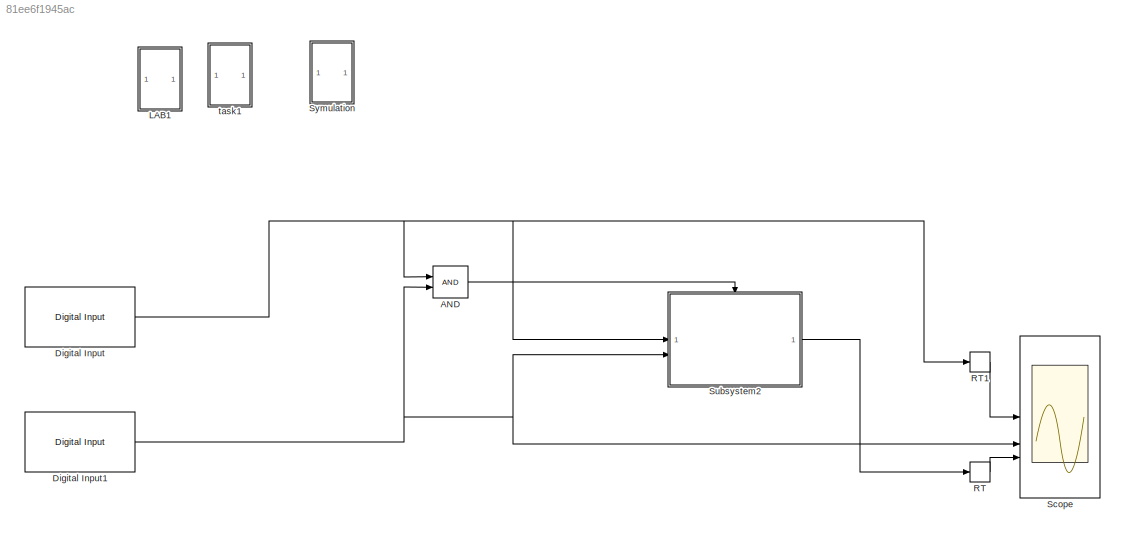
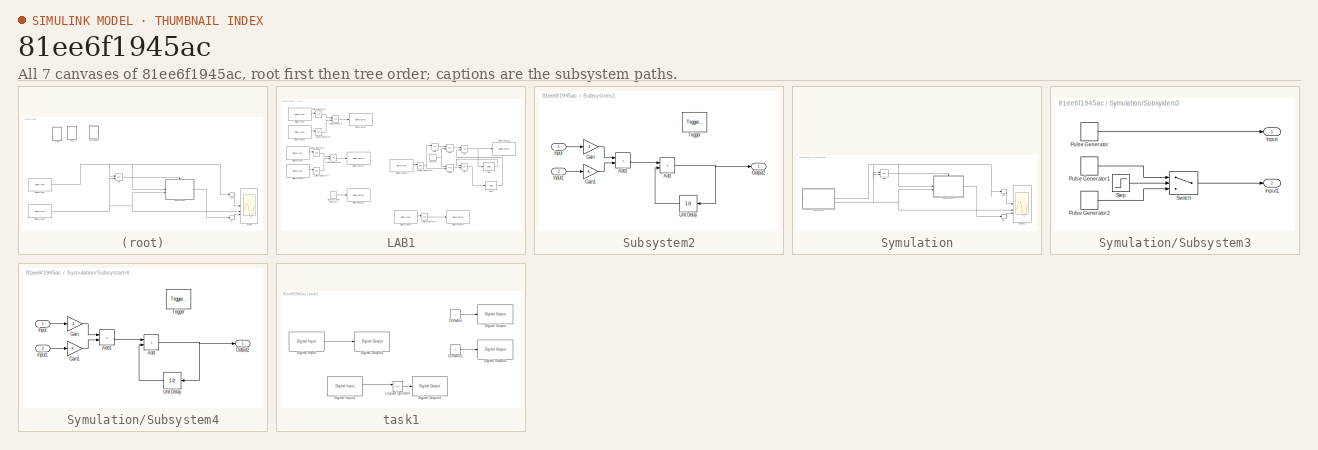
[diagram: thumbnail index - all 7 canvases of the model, root first then tree order]
MODEL slx_81ee6f1945ac
KIND model
CONFIG AbsTol = auto
CONFIG EnableMultiTasking = on
CONFIG FixedStep = auto
CONFIG MaxStep = auto
CONFIG MinStep = auto
CONFIG RelTol = 1e-3
CONFIG SampleTimeConstraint = Unconstrained
CONFIG SolverName = FixedStepAuto
CONFIG StartTime = 0.0
CONFIG StopTime = Inf
BLOCK [Logic] AND
  AllPortsSameDT = off
  IconShape = distinctive
  OutDataTypeStr = boolean
BLOCK [Reference] Digital Input  REF=c2837xDlib/Digital Input
  SourceBlock = c2837xDlib/Digital Input
  SourceType = F2837x GPIO Digital Input
  UserDataPersistent = on
BLOCK [Reference] Digital Input1  REF=c2837xDlib/Digital Input
  SourceBlock = c2837xDlib/Digital Input
  SourceType = F2837x GPIO Digital Input
  UserDataPersistent = on
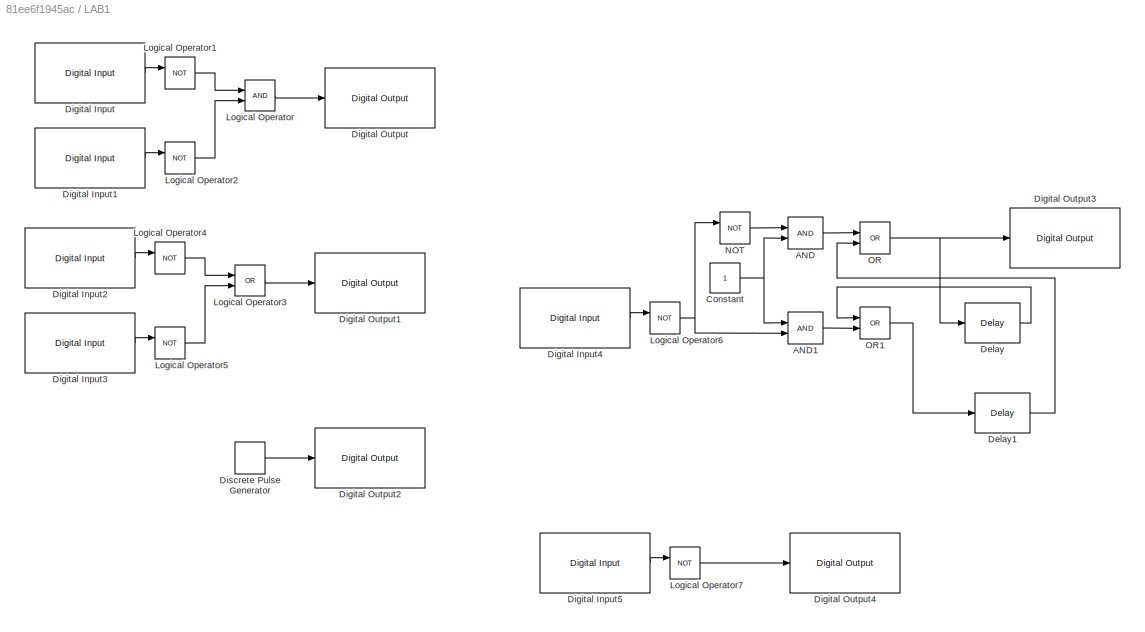
BLOCK [SubSystem] LAB1
BLOCK [Logic] LAB1/AND
  AllPortsSameDT = off
  Commented = on
  IconShape = distinctive
  OutDataTypeStr = boolean
BLOCK [Logic] LAB1/AND1
  AllPortsSameDT = off
  Commented = on
  IconShape = distinctive
  OutDataTypeStr = boolean
BLOCK [Constant] LAB1/Constant
  Commented = on
BLOCK [Delay] LAB1/Delay
  Commented = on
  DelayLength = 1
  InitialCondition = 0
  InputPortMap = u0
  UseCircularBuffer = on
  UserDataPersistent = on
BLOCK [Delay] LAB1/Delay1
  Commented = on
  DelayLength = 1
  InitialCondition = 0
  InputPortMap = u0
  UseCircularBuffer = on
  UserDataPersistent = on
BLOCK [Reference] LAB1/Digital Input  REF=c2837xDlib/Digital Input
  Commented = on
  SourceBlock = c2837xDlib/Digital Input
  SourceType = F2837x GPIO Digital Input
  UserDataPersistent = on
BLOCK [Reference] LAB1/Digital Input1  REF=c2837xDlib/Digital Input
  Commented = on
  SourceBlock = c2837xDlib/Digital Input
  SourceType = F2837x GPIO Digital Input
  UserDataPersistent = on
BLOCK [Reference] LAB1/Digital Input2  REF=c2837xDlib/Digital Input
  Commented = on
  SourceBlock = c2837xDlib/Digital Input
  SourceType = F2837x GPIO Digital Input
  UserDataPersistent = on
BLOCK [Reference] LAB1/Digital Input3  REF=c2837xDlib/Digital Input
  Commented = on
  SourceBlock = c2837xDlib/Digital Input
  SourceType = F2837x GPIO Digital Input
  UserDataPersistent = on
BLOCK [Reference] LAB1/Digital Input4  REF=c2837xDlib/Digital Input
  Commented = on
  NameLocation = top
  SourceBlock = c2837xDlib/Digital Input
  SourceType = F2837x GPIO Digital Input
  UserDataPersistent = on
BLOCK [Reference] LAB1/Digital Input5  REF=c2837xDlib/Digital Input
  Commented = on
  NameLocation = top
  SourceBlock = c2837xDlib/Digital Input
  SourceType = F2837x GPIO Digital Input
  UserDataPersistent = on
BLOCK [Reference] LAB1/Digital Output  REF=c2837xDlib/Digital Output
  Commented = on
  SourceBlock = c2837xDlib/Digital Output
  SourceType = F2837x GPIO Digital Output
  UserDataPersistent = on
BLOCK [Reference] LAB1/Digital Output1  REF=c2837xDlib/Digital Output
  Commented = on
  SourceBlock = c2837xDlib/Digital Output
  SourceType = F2837x GPIO Digital Output
  UserDataPersistent = on
BLOCK [Reference] LAB1/Digital Output2  REF=c2837xDlib/Digital Output
  Commented = on
  SourceBlock = c2837xDlib/Digital Output
  SourceType = F2837x GPIO Digital Output
  UserDataPersistent = on
BLOCK [Reference] LAB1/Digital Output3  REF=c2837xDlib/Digital Output
  Commented = on
  SourceBlock = c2837xDlib/Digital Output
  SourceType = F2837x GPIO Digital Output
  UserDataPersistent = on
BLOCK [Reference] LAB1/Digital Output4  REF=c2837xDlib/Digital Output
  Commented = on
  SourceBlock = c2837xDlib/Digital Output
  SourceType = F2837x GPIO Digital Output
  UserDataPersistent = on
BLOCK [DiscretePulseGenerator] LAB1/Discrete Pulse Generator
  Commented = on
  PulseType = Time based
  PulseWidth = 50
BLOCK [Logic] LAB1/Logical Operator
  AllPortsSameDT = off
  Commented = on
  OutDataTypeStr = boolean
BLOCK [Logic] LAB1/Logical Operator1
  AllPortsSameDT = off
  Commented = on
  Operator = NOT
  OutDataTypeStr = boolean
BLOCK [Logic] LAB1/Logical Operator2
  AllPortsSameDT = off
  Commented = on
  Operator = NOT
  OutDataTypeStr = boolean
BLOCK [Logic] LAB1/Logical Operator3
  AllPortsSameDT = off
  Commented = on
  Operator = OR
  OutDataTypeStr = boolean
BLOCK [Logic] LAB1/Logical Operator4
  AllPortsSameDT = off
  Commented = on
  Operator = NOT
  OutDataTypeStr = boolean
BLOCK [Logic] LAB1/Logical Operator5
  AllPortsSameDT = off
  Commented = on
  Operator = NOT
  OutDataTypeStr = boolean
BLOCK [Logic] LAB1/Logical Operator6
  AllPortsSameDT = off
  Commented = on
  Operator = NOT
  OutDataTypeStr = boolean
BLOCK [Logic] LAB1/Logical Operator7
  AllPortsSameDT = off
  Commented = on
  Operator = NOT
  OutDataTypeStr = boolean
BLOCK [Logic] LAB1/NOT
  AllPortsSameDT = off
  Commented = on
  IconShape = distinctive
  Operator = NOT
  OutDataTypeStr = boolean
BLOCK [Logic] LAB1/OR
  AllPortsSameDT = off
  Commented = on
  IconShape = distinctive
  Operator = OR
  OutDataTypeStr = boolean
BLOCK [Logic] LAB1/OR1
  AllPortsSameDT = off
  Commented = on
  IconShape = distinctive
  Operator = OR
  OutDataTypeStr = boolean
BLOCK [RateTransition] RT
  OutPortSampleTime = 0.25
BLOCK [RateTransition] RT1
  OutPortSampleTime = 0.25
BLOCK [Scope] Scope
  Floating = off
  NumInputPorts = 3
  ScopeSpecificationString = Simulink.scopes.TimeScopeBlockCfg('CurrentConfiguration', extmgr.ConfigurationSet(extmgr.Configuration('Core','General UI',true),extmgr.Configuration('Core','Source UI',true),extmgr.Configuration('Sources','WiredSimulink',true),extmgr.Configuration('Visuals','Time Domain',true,'SerializedDisplays',{struct('MinYLimReal','-0.125','MaxYLimReal','1.125','YLabelReal','','MinYLimMag','0.00000','MaxYLimM...<+2713ch>
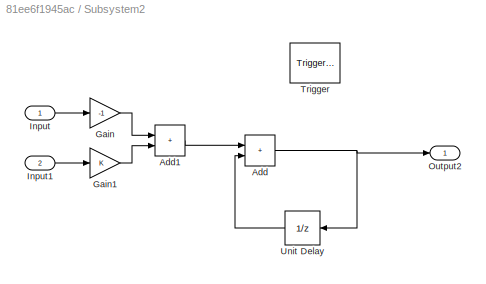
BLOCK [SubSystem] Subsystem2
BLOCK [Sum] Subsystem2/Add
  IconShape = rectangular
BLOCK [Sum] Subsystem2/Add1
  IconShape = rectangular
BLOCK [Gain] Subsystem2/Gain
  Gain = -1
BLOCK [Gain] Subsystem2/Gain1
BLOCK [Inport] Subsystem2/Input
BLOCK [Inport] Subsystem2/Input1
  Port = 2
BLOCK [Outport] Subsystem2/Output2
BLOCK [TriggerPort] Subsystem2/Trigger
  PortDimensions = 1
  StatesWhenEnabling = held
  TriggerType = falling
  VariantControl = (inherit)
BLOCK [UnitDelay] Subsystem2/Unit Delay
  HasFrameUpgradeWarning = on
  NameLocation = top
  SampleTime = -1
BLOCK [SubSystem] Symulation
  Commented = on
BLOCK [Logic] Symulation/AND1
  AllPortsSameDT = off
  IconShape = distinctive
  OutDataTypeStr = boolean
BLOCK [RateTransition] Symulation/RT2
  OutPortSampleTime = 0.25
BLOCK [RateTransition] Symulation/RT3
  OutPortSampleTime = 0.25
BLOCK [Scope] Symulation/Scope1
  Floating = off
  NumInputPorts = 3
  ScopeSpecificationString = Simulink.scopes.TimeScopeBlockCfg('CurrentConfiguration', extmgr.ConfigurationSet(extmgr.Configuration('Core','General UI',true),extmgr.Configuration('Core','Source UI',true),extmgr.Configuration('Sources','WiredSimulink',true,'DataLoggingVariableName','ScopeData1'),extmgr.Configuration('Visuals','Time Domain',true,'SerializedDisplays',{struct('MinYLimReal','-0.125','MaxYLimReal','1.125','YLabelRe...<+2752ch>
BLOCK [SubSystem] Symulation/Subsystem3
BLOCK [Outport] Symulation/Subsystem3/Input
BLOCK [Outport] Symulation/Subsystem3/Input1
  Port = 2
BLOCK [DiscretePulseGenerator] Symulation/Subsystem3/Pulse Generator
  Period = 1
  PulseType = Time based
  PulseWidth = 50
BLOCK [DiscretePulseGenerator] Symulation/Subsystem3/Pulse Generator1
  Period = 1
  PhaseDelay = 0.25
  PulseType = Time based
  PulseWidth = 50
BLOCK [DiscretePulseGenerator] Symulation/Subsystem3/Pulse Generator2
  Period = 1
  PhaseDelay = 0.75
  PulseType = Time based
  PulseWidth = 50
BLOCK [Step] Symulation/Subsystem3/Step
  Time = 10
BLOCK [Switch] Symulation/Subsystem3/Switch
  Criteria = u2 > Threshold
  InputSameDT = off
  SaturateOnIntegerOverflow = off
BLOCK [SubSystem] Symulation/Subsystem4
BLOCK [Sum] Symulation/Subsystem4/Add
  IconShape = rectangular
BLOCK [Sum] Symulation/Subsystem4/Add1
  IconShape = rectangular
BLOCK [Gain] Symulation/Subsystem4/Gain
  Gain = -1
BLOCK [Gain] Symulation/Subsystem4/Gain1
BLOCK [Inport] Symulation/Subsystem4/Input
BLOCK [Inport] Symulation/Subsystem4/Input1
  Port = 2
BLOCK [Outport] Symulation/Subsystem4/Output2
BLOCK [TriggerPort] Symulation/Subsystem4/Trigger
  PortDimensions = 1
  StatesWhenEnabling = held
  TriggerType = falling
  VariantControl = (inherit)
BLOCK [UnitDelay] Symulation/Subsystem4/Unit Delay
  HasFrameUpgradeWarning = on
  NameLocation = top
  SampleTime = -1
BLOCK [SubSystem] task1
BLOCK [Constant] task1/Constant
  Commented = on
BLOCK [Constant] task1/Constant1
  Commented = on
  Value = 0
BLOCK [Reference] task1/Digital Input  REF=c2837xDlib/Digital Input
  Commented = on
  SourceBlock = c2837xDlib/Digital Input
  SourceType = F2837x GPIO Digital Input
  UserDataPersistent = on
BLOCK [Reference] task1/Digital Input1  REF=c2837xDlib/Digital Input
  Commented = on
  SourceBlock = c2837xDlib/Digital Input
  SourceType = F2837x GPIO Digital Input
  UserDataPersistent = on
BLOCK [Reference] task1/Digital Output  REF=c2837xDlib/Digital Output
  Commented = on
  SourceBlock = c2837xDlib/Digital Output
  SourceType = F2837x GPIO Digital Output
  UserDataPersistent = on
BLOCK [Reference] task1/Digital Output1  REF=c2837xDlib/Digital Output
  Commented = on
  SourceBlock = c2837xDlib/Digital Output
  SourceType = F2837x GPIO Digital Output
  UserDataPersistent = on
BLOCK [Reference] task1/Digital Output2  REF=c2837xDlib/Digital Output
  Commented = on
  SourceBlock = c2837xDlib/Digital Output
  SourceType = F2837x GPIO Digital Output
  UserDataPersistent = on
BLOCK [Reference] task1/Digital Output3  REF=c2837xDlib/Digital Output
  Commented = on
  SourceBlock = c2837xDlib/Digital Output
  SourceType = F2837x GPIO Digital Output
  UserDataPersistent = on
BLOCK [Logic] task1/Logical Operator
  AllPortsSameDT = off
  Commented = on
  Operator = NOT
  OutDataTypeStr = boolean
LINE AND:1 -> Subsystem2:trigger
NET Digital Input1:1 -> AND:2, Scope:2, Subsystem2:2
NET Digital Input:1 -> AND:1, RT1:1, Subsystem2:1
LINE LAB1/AND1:1 -> LAB1/OR1:2
LINE LAB1/AND:1 -> LAB1/OR:1
NET LAB1/Constant:1 -> LAB1/AND1:1, LAB1/AND:2
LINE LAB1/Delay1:1 -> LAB1/OR:2
LINE LAB1/Delay:1 -> LAB1/OR1:1
LINE LAB1/Digital Input1:1 -> LAB1/Logical Operator2:1
LINE LAB1/Digital Input2:1 -> LAB1/Logical Operator4:1
LINE LAB1/Digital Input3:1 -> LAB1/Logical Operator5:1
LINE LAB1/Digital Input4:1 -> LAB1/Logical Operator6:1
LINE LAB1/Digital Input5:1 -> LAB1/Logical Operator7:1
LINE LAB1/Digital Input:1 -> LAB1/Logical Operator1:1
LINE LAB1/Discrete Pulse Generator:1 -> LAB1/Digital Output2:1
LINE LAB1/Logical Operator1:1 -> LAB1/Logical Operator:1
LINE LAB1/Logical Operator2:1 -> LAB1/Logical Operator:2
LINE LAB1/Logical Operator3:1 -> LAB1/Digital Output1:1
LINE LAB1/Logical Operator4:1 -> LAB1/Logical Operator3:1
LINE LAB1/Logical Operator5:1 -> LAB1/Logical Operator3:2
NET LAB1/Logical Operator6:1 -> LAB1/AND1:2, LAB1/NOT:1
LINE LAB1/Logical Operator7:1 -> LAB1/Digital Output4:1
LINE LAB1/Logical Operator:1 -> LAB1/Digital Output:1
LINE LAB1/NOT:1 -> LAB1/AND:1
LINE LAB1/OR1:1 -> LAB1/Delay1:1
NET LAB1/OR:1 -> LAB1/Delay:1, LAB1/Digital Output3:1
LINE RT1:1 -> Scope:1
LINE RT:1 -> Scope:3
LINE Subsystem2/Add1:1 -> Subsystem2/Add:1
NET Subsystem2/Add:1 -> Subsystem2/Output2:1, Subsystem2/Unit Delay:1
LINE Subsystem2/Gain1:1 -> Subsystem2/Add1:2
LINE Subsystem2/Gain:1 -> Subsystem2/Add1:1
LINE Subsystem2/Input1:1 -> Subsystem2/Gain1:1
LINE Subsystem2/Input:1 -> Subsystem2/Gain:1
LINE Subsystem2/Unit Delay:1 -> Subsystem2/Add:2
LINE Subsystem2:1 -> RT:1
LINE Symulation/AND1:1 -> Symulation/Subsystem4:trigger
LINE Symulation/RT2:1 -> Symulation/Scope1:3
LINE Symulation/RT3:1 -> Symulation/Scope1:1
LINE Symulation/Subsystem3/Pulse Generator1:1 -> Symulation/Subsystem3/Switch:1
LINE Symulation/Subsystem3/Pulse Generator2:1 -> Symulation/Subsystem3/Switch:3
LINE Symulation/Subsystem3/Pulse Generator:1 -> Symulation/Subsystem3/Input:1
LINE Symulation/Subsystem3/Step:1 -> Symulation/Subsystem3/Switch:2
LINE Symulation/Subsystem3/Switch:1 -> Symulation/Subsystem3/Input1:1
NET Symulation/Subsystem3:1 -> Symulation/AND1:1, Symulation/RT3:1, Symulation/Subsystem4:1
NET Symulation/Subsystem3:2 -> Symulation/AND1:2, Symulation/Scope1:2, Symulation/Subsystem4:2
LINE Symulation/Subsystem4/Add1:1 -> Symulation/Subsystem4/Add:1
NET Symulation/Subsystem4/Add:1 -> Symulation/Subsystem4/Output2:1, Symulation/Subsystem4/Unit Delay:1
LINE Symulation/Subsystem4/Gain1:1 -> Symulation/Subsystem4/Add1:2
LINE Symulation/Subsystem4/Gain:1 -> Symulation/Subsystem4/Add1:1
LINE Symulation/Subsystem4/Input1:1 -> Symulation/Subsystem4/Gain1:1
LINE Symulation/Subsystem4/Input:1 -> Symulation/Subsystem4/Gain:1
LINE Symulation/Subsystem4/Unit Delay:1 -> Symulation/Subsystem4/Add:2
LINE Symulation/Subsystem4:1 -> Symulation/RT2:1
LINE task1/Constant1:1 -> task1/Digital Output1:1
LINE task1/Constant:1 -> task1/Digital Output:1
LINE task1/Digital Input1:1 -> task1/Logical Operator:1
LINE task1/Digital Input:1 -> task1/Digital Output2:1
LINE task1/Logical Operator:1 -> task1/Digital Output3:1
note: NET lines group one-source signal fan-out (src -> all destinations, sorted); 1:1 wires keep LINE
